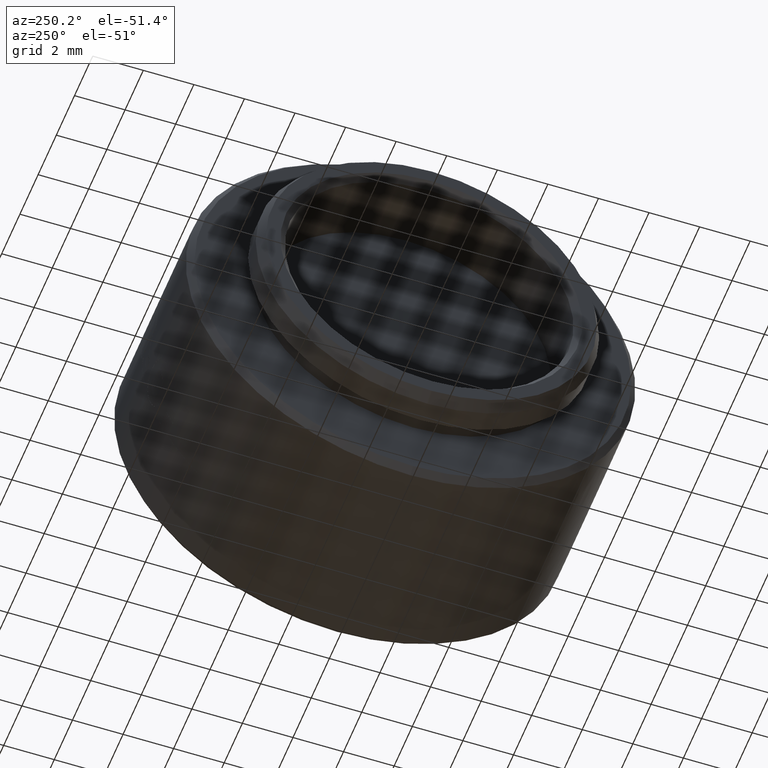
[diagram: clean part render]
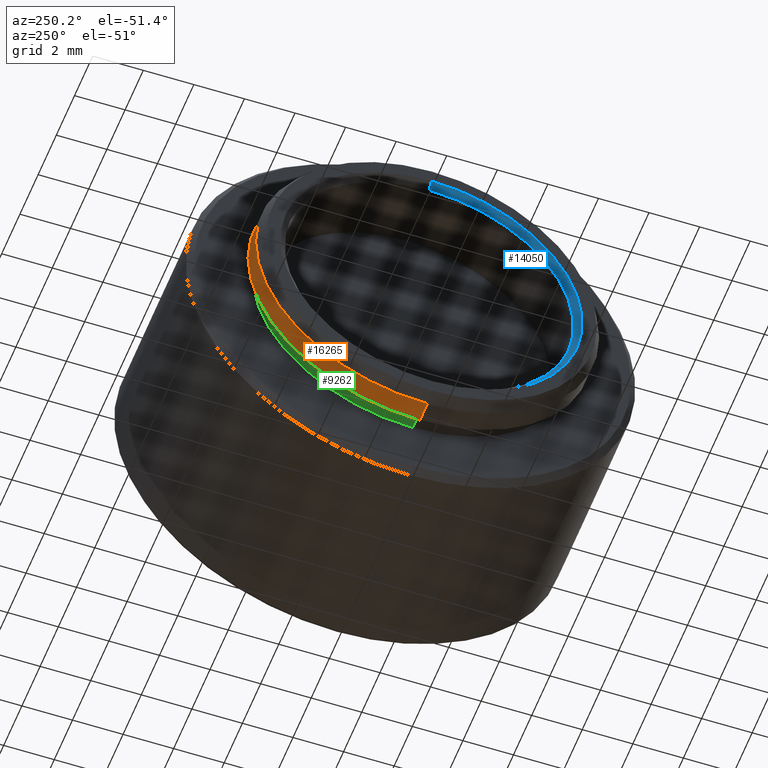
[diagram: same view with three faces highlighted in distinct colors, each labeled with its STEP entity id]
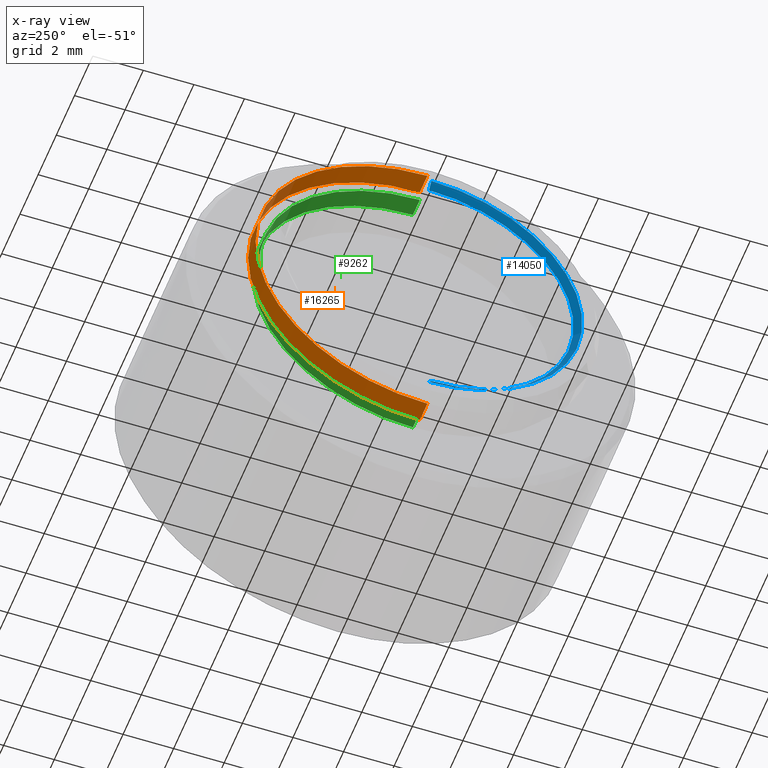
[diagram: x-ray of the same camera — body ghosted, the three highlighted faces saturated]
A machine part, auxiliary view with three faces highlighted in distinct colors.
The next image is the same camera in x-ray (body ghosted, the three faces saturated) — at least one of them is partly hidden behind the body in this view.
Their STEP definitions:

[orange] entity #16265 — the highlighted cylindrical surface (partial cylindrical patch) has radius 6.7945 mm, axis along (1, -0, -0).
#888 = DIRECTION ( 'NONE',  ( 1.000000000000000000, -0.0000000000000000000, -0.0000000000000000000 ) ) ;
#1403 = CIRCLE ( 'NONE', #17786, 0.2674999999999999000 ) ;
#1722 = DIRECTION ( 'NONE',  ( 1.000000000000000000, -0.0000000000000000000, -0.0000000000000000000 ) ) ;
#2330 = DIRECTION ( 'NONE',  ( 1.000000000000000000, -0.0000000000000000000, -0.0000000000000000000 ) ) ;
#2768 = DIRECTION ( 'NONE',  ( 1.000000000000000000, -0.0000000000000000000, -0.0000000000000000000 ) ) ;
#3194 = VERTEX_POINT ( 'NONE', #8106 ) ;
#4605 = EDGE_LOOP ( 'NONE', ( #13329, #10043, #10192, #10633 ) ) ;
#4807 = EDGE_CURVE ( 'NONE', #4936, #3194, #15415, .T. ) ;
#4936 = VERTEX_POINT ( 'NONE', #15871 ) ;
#5058 = CARTESIAN_POINT ( 'NONE',  ( 0.2050000000000000400, 0.0000000000000000000, -0.2674999999999999000 ) ) ;
#6507 = VERTEX_POINT ( 'NONE', #11027 ) ;
#6747 = CYLINDRICAL_SURFACE ( 'NONE', #7093, 0.2674999999999999000 ) ;
#6795 = EDGE_CURVE ( 'NONE', #6507, #3194, #1403, .T. ) ;
#7093 = AXIS2_PLACEMENT_3D ( 'NONE', #17744, #7927, #9386 ) ;
#7927 = DIRECTION ( 'NONE',  ( 1.000000000000000000, -0.0000000000000000000, -0.0000000000000000000 ) ) ;
#8022 = VECTOR ( 'NONE', #2768, 39.37007874015748100 ) ;
#8106 = CARTESIAN_POINT ( 'NONE',  ( -0.1550000000000003000, 3.275930187719168700E-017, 0.2674999999999999000 ) ) ;
#9386 = DIRECTION ( 'NONE',  ( 0.0000000000000000000, 0.0000000000000000000, -1.000000000000000000 ) ) ;
#10043 = ORIENTED_EDGE ( 'NONE', *, *, #4807, .T. ) ;
#10078 = CARTESIAN_POINT ( 'NONE',  ( -0.1876794919243110200, 0.0000000000000000000, 0.0000000000000000000 ) ) ;
#10192 = ORIENTED_EDGE ( 'NONE', *, *, #6795, .F. ) ;
#10633 = ORIENTED_EDGE ( 'NONE', *, *, #18087, .F. ) ;
#10700 = CARTESIAN_POINT ( 'NONE',  ( -0.1550000000000003000, 0.0000000000000000000, 0.0000000000000000000 ) ) ;
#11027 = CARTESIAN_POINT ( 'NONE',  ( -0.1550000000000003000, 0.0000000000000000000, -0.2674999999999999000 ) ) ;
#11486 = DIRECTION ( 'NONE',  ( 0.0000000000000000000, 0.0000000000000000000, 1.000000000000000000 ) ) ;
#12105 = DIRECTION ( 'NONE',  ( 0.0000000000000000000, 0.0000000000000000000, -1.000000000000000000 ) ) ;
#12618 = VERTEX_POINT ( 'NONE', #14299 ) ;
#13329 = ORIENTED_EDGE ( 'NONE', *, *, #15571, .T. ) ;
#13478 = LINE ( 'NONE', #5058, #16747 ) ;
#13819 = CARTESIAN_POINT ( 'NONE',  ( 0.2050000000000000400, 3.275930187719168700E-017, 0.2674999999999999000 ) ) ;
#14299 = CARTESIAN_POINT ( 'NONE',  ( -0.1876794919243110200, 0.0000000000000000000, -0.2674999999999999000 ) ) ;
#14615 = CIRCLE ( 'NONE', #16196, 0.2674999999999999000 ) ;
#15415 = LINE ( 'NONE', #13819, #8022 ) ;
#15571 = EDGE_CURVE ( 'NONE', #12618, #4936, #14615, .T. ) ;
#15871 = CARTESIAN_POINT ( 'NONE',  ( -0.1876794919243110200, 3.275930187719168700E-017, 0.2674999999999999000 ) ) ;
#16196 = AXIS2_PLACEMENT_3D ( 'NONE', #10078, #1722, #11486 ) ;
#16265 = ADVANCED_FACE ( 'NONE', ( #17884 ), #6747, .T. ) ;
#16747 = VECTOR ( 'NONE', #888, 39.37007874015748100 ) ;
#17744 = CARTESIAN_POINT ( 'NONE',  ( 0.2050000000000000400, 0.0000000000000000000, 0.0000000000000000000 ) ) ;
#17786 = AXIS2_PLACEMENT_3D ( 'NONE', #10700, #2330, #12105 ) ;
#17884 = FACE_OUTER_BOUND ( 'NONE', #4605, .T. ) ;
#18087 = EDGE_CURVE ( 'NONE', #12618, #6507, #13478, .T. ) ;

[blue] entity #14050 — the highlighted conical surface has half-angle 45 deg.
#396 = DIRECTION ( 'NONE',  ( 1.000000000000000000, -0.0000000000000000000, -0.0000000000000000000 ) ) ;
#827 = DIRECTION ( 'NONE',  ( -0.7071067811865462400, 8.659560562354947600E-017, -0.7071067811865486800 ) ) ;
#976 = AXIS2_PLACEMENT_3D ( 'NONE', #17503, #10539, #16048 ) ;
#2396 = AXIS2_PLACEMENT_3D ( 'NONE', #8776, #396, #10183 ) ;
#2628 = DIRECTION ( 'NONE',  ( -1.000000000000000000, -0.0000000000000000000, -0.0000000000000000000 ) ) ;
#2752 = ORIENTED_EDGE ( 'NONE', *, *, #18036, .F. ) ;
#2771 = LINE ( 'NONE', #12012, #9763 ) ;
#3850 = CARTESIAN_POINT ( 'NONE',  ( -0.2050000000000000400, 2.877919977996281700E-017, -0.2350000000000001300 ) ) ;
#4893 = VERTEX_POINT ( 'NONE', #7277 ) ;
#6532 = CARTESIAN_POINT ( 'NONE',  ( -0.1949999999999999200, 2.755455298081544500E-017, 0.2249999999999999800 ) ) ;
#6987 = LINE ( 'NONE', #9197, #14417 ) ;
#7277 = CARTESIAN_POINT ( 'NONE',  ( -0.2050000000000000400, 0.0000000000000000000, 0.2350000000000001300 ) ) ;
#7926 = VERTEX_POINT ( 'NONE', #13779 ) ;
#8776 = CARTESIAN_POINT ( 'NONE',  ( -0.2050000000000000400, 0.0000000000000000000, 0.0000000000000000000 ) ) ;
#8807 = ORIENTED_EDGE ( 'NONE', *, *, #14060, .T. ) ;
#9197 = CARTESIAN_POINT ( 'NONE',  ( -0.2050000000000000400, 2.877919977996281700E-017, -0.2350000000000001300 ) ) ;
#9524 = ORIENTED_EDGE ( 'NONE', *, *, #16039, .F. ) ;
#9763 = VECTOR ( 'NONE', #13443, 39.37007874015748900 ) ;
#10015 = CIRCLE ( 'NONE', #10234, 0.2249999999999999800 ) ;
#10183 = DIRECTION ( 'NONE',  ( 0.0000000000000000000, 0.0000000000000000000, 1.000000000000000000 ) ) ;
#10234 = AXIS2_PLACEMENT_3D ( 'NONE', #10990, #2628, #12404 ) ;
#10356 = ORIENTED_EDGE ( 'NONE', *, *, #15818, .F. ) ;
#10539 = DIRECTION ( 'NONE',  ( -1.000000000000000000, -0.0000000000000000000, -0.0000000000000000000 ) ) ;
#10990 = CARTESIAN_POINT ( 'NONE',  ( -0.1949999999999999200, 0.0000000000000000000, 0.0000000000000000000 ) ) ;
#12012 = CARTESIAN_POINT ( 'NONE',  ( -0.2050000000000000400, 0.0000000000000000000, 0.2350000000000001300 ) ) ;
#12404 = DIRECTION ( 'NONE',  ( 0.0000000000000000000, 0.0000000000000000000, 1.000000000000000000 ) ) ;
#12860 = CIRCLE ( 'NONE', #2396, 0.2350000000000001300 ) ;
#13443 = DIRECTION ( 'NONE',  ( -0.7071067811865462400, 0.0000000000000000000, 0.7071067811865486800 ) ) ;
#13779 = CARTESIAN_POINT ( 'NONE',  ( -0.1949999999999999200, 0.0000000000000000000, -0.2249999999999999800 ) ) ;
#13949 = EDGE_LOOP ( 'NONE', ( #10356, #8807, #9524, #2752 ) ) ;
#14050 = ADVANCED_FACE ( 'NONE', ( #18135 ), #17689, .F. ) ;
#14060 = EDGE_CURVE ( 'NONE', #7926, #16857, #6987, .T. ) ;
#14417 = VECTOR ( 'NONE', #827, 39.37007874015748900 ) ;
#15109 = VERTEX_POINT ( 'NONE', #6532 ) ;
#15818 = EDGE_CURVE ( 'NONE', #7926, #15109, #10015, .T. ) ;
#16039 = EDGE_CURVE ( 'NONE', #4893, #16857, #12860, .T. ) ;
#16048 = DIRECTION ( 'NONE',  ( 0.0000000000000000000, 0.0000000000000000000, 1.000000000000000000 ) ) ;
#16857 = VERTEX_POINT ( 'NONE', #3850 ) ;
#17503 = CARTESIAN_POINT ( 'NONE',  ( -0.2050000000000000400, 0.0000000000000000000, 0.0000000000000000000 ) ) ;
#17689 = CONICAL_SURFACE ( 'NONE', #976, 0.2350000000000001300, 0.7853981633974500600 ) ;
#18036 = EDGE_CURVE ( 'NONE', #15109, #4893, #2771, .T. ) ;
#18135 = FACE_OUTER_BOUND ( 'NONE', #13949, .T. ) ;

[green] entity #9262 — the highlighted cylindrical surface (partial cylindrical patch) has radius 6.3373 mm, axis along (1, -0, -0).
#113 = DIRECTION ( 'NONE',  ( 1.000000000000000000, -0.0000000000000000000, -0.0000000000000000000 ) ) ;
#116 = EDGE_CURVE ( 'NONE', #2421, #7260, #7117, .T. ) ;
#422 = CARTESIAN_POINT ( 'NONE',  ( -0.1550000000000003000, 0.0000000000000000000, -0.2494999999999999700 ) ) ;
#794 = CARTESIAN_POINT ( 'NONE',  ( -0.1250000000000002800, 3.055493763872645600E-017, 0.2494999999999999700 ) ) ;
#831 = EDGE_CURVE ( 'NONE', #7260, #6742, #6898, .T. ) ;
#1652 = AXIS2_PLACEMENT_3D ( 'NONE', #11892, #7753, #6358 ) ;
#2421 = VERTEX_POINT ( 'NONE', #422 ) ;
#2619 = EDGE_CURVE ( 'NONE', #15649, #6742, #9912, .T. ) ;
#2956 = VECTOR ( 'NONE', #11786, 39.37007874015748100 ) ;
#3275 = CARTESIAN_POINT ( 'NONE',  ( -0.1550000000000003000, 0.0000000000000000000, 0.0000000000000000000 ) ) ;
#4093 = ORIENTED_EDGE ( 'NONE', *, *, #831, .F. ) ;
#4712 = DIRECTION ( 'NONE',  ( 0.0000000000000000000, 0.0000000000000000000, -1.000000000000000000 ) ) ;
#5746 = FACE_OUTER_BOUND ( 'NONE', #8409, .T. ) ;
#6358 = DIRECTION ( 'NONE',  ( 0.0000000000000000000, 0.0000000000000000000, -1.000000000000000000 ) ) ;
#6742 = VERTEX_POINT ( 'NONE', #794 ) ;
#6898 = CIRCLE ( 'NONE', #17970, 0.2494999999999999700 ) ;
#7052 = EDGE_CURVE ( 'NONE', #2421, #15649, #9931, .T. ) ;
#7099 = CARTESIAN_POINT ( 'NONE',  ( 0.2050000000000000400, 3.055493763872645600E-017, 0.2494999999999999700 ) ) ;
#7117 = LINE ( 'NONE', #17362, #2956 ) ;
#7260 = VERTEX_POINT ( 'NONE', #14828 ) ;
#7349 = DIRECTION ( 'NONE',  ( 1.000000000000000000, -0.0000000000000000000, -0.0000000000000000000 ) ) ;
#7377 = ORIENTED_EDGE ( 'NONE', *, *, #7052, .T. ) ;
#7753 = DIRECTION ( 'NONE',  ( 1.000000000000000000, -0.0000000000000000000, -0.0000000000000000000 ) ) ;
#8095 = AXIS2_PLACEMENT_3D ( 'NONE', #3275, #13075, #4712 ) ;
#8409 = EDGE_LOOP ( 'NONE', ( #7377, #15551, #4093, #10371 ) ) ;
#9262 = ADVANCED_FACE ( 'NONE', ( #5746 ), #16457, .T. ) ;
#9912 = LINE ( 'NONE', #7099, #13194 ) ;
#9931 = CIRCLE ( 'NONE', #8095, 0.2494999999999999700 ) ;
#10371 = ORIENTED_EDGE ( 'NONE', *, *, #116, .F. ) ;
#11786 = DIRECTION ( 'NONE',  ( 1.000000000000000000, -0.0000000000000000000, -0.0000000000000000000 ) ) ;
#11892 = CARTESIAN_POINT ( 'NONE',  ( 0.2050000000000000400, 0.0000000000000000000, 0.0000000000000000000 ) ) ;
#13075 = DIRECTION ( 'NONE',  ( 1.000000000000000000, -0.0000000000000000000, -0.0000000000000000000 ) ) ;
#13194 = VECTOR ( 'NONE', #113, 39.37007874015748100 ) ;
#14828 = CARTESIAN_POINT ( 'NONE',  ( -0.1250000000000002800, 0.0000000000000000000, -0.2494999999999999700 ) ) ;
#15551 = ORIENTED_EDGE ( 'NONE', *, *, #2619, .T. ) ;
#15649 = VERTEX_POINT ( 'NONE', #17409 ) ;
#15704 = CARTESIAN_POINT ( 'NONE',  ( -0.1250000000000002800, 0.0000000000000000000, 0.0000000000000000000 ) ) ;
#16457 = CYLINDRICAL_SURFACE ( 'NONE', #1652, 0.2494999999999999700 ) ;
#17110 = DIRECTION ( 'NONE',  ( 0.0000000000000000000, 0.0000000000000000000, -1.000000000000000000 ) ) ;
#17362 = CARTESIAN_POINT ( 'NONE',  ( 0.2050000000000000400, 0.0000000000000000000, -0.2494999999999999700 ) ) ;
#17409 = CARTESIAN_POINT ( 'NONE',  ( -0.1550000000000003000, 3.055493763872645600E-017, 0.2494999999999999700 ) ) ;
#17970 = AXIS2_PLACEMENT_3D ( 'NONE', #15704, #7349, #17110 ) ;